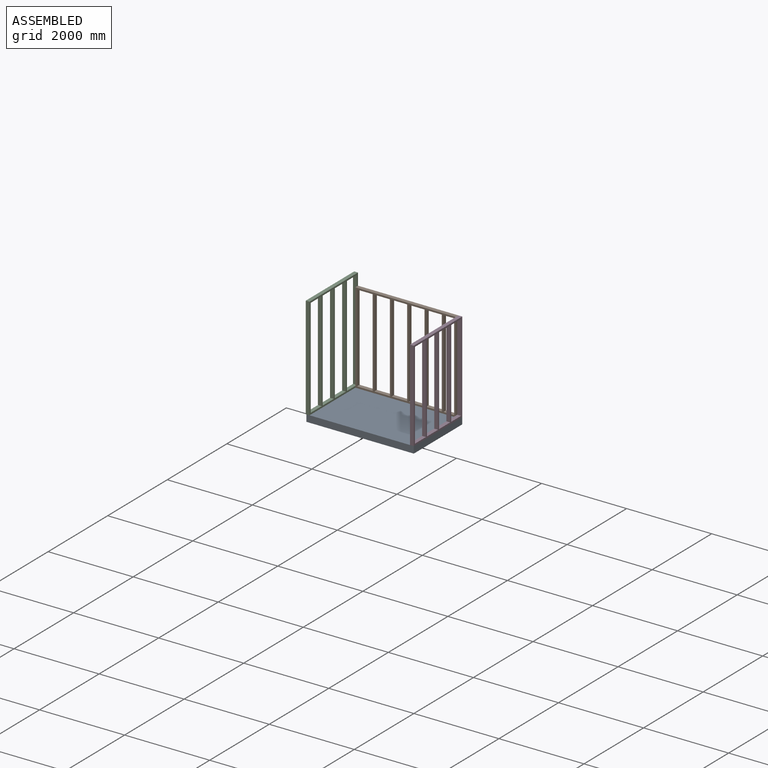
[diagram: assembled view]
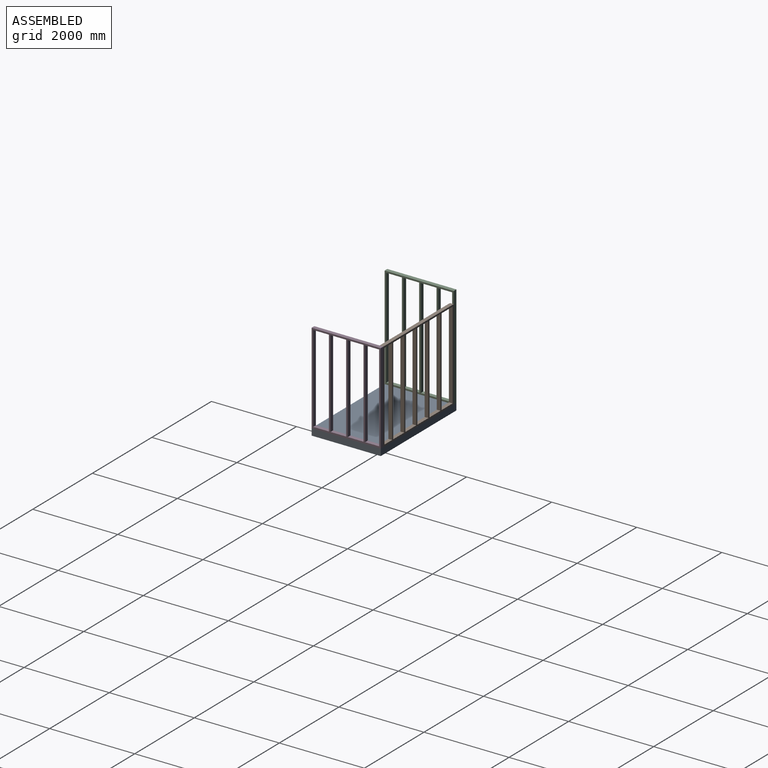
[diagram: assembled view, second angle]
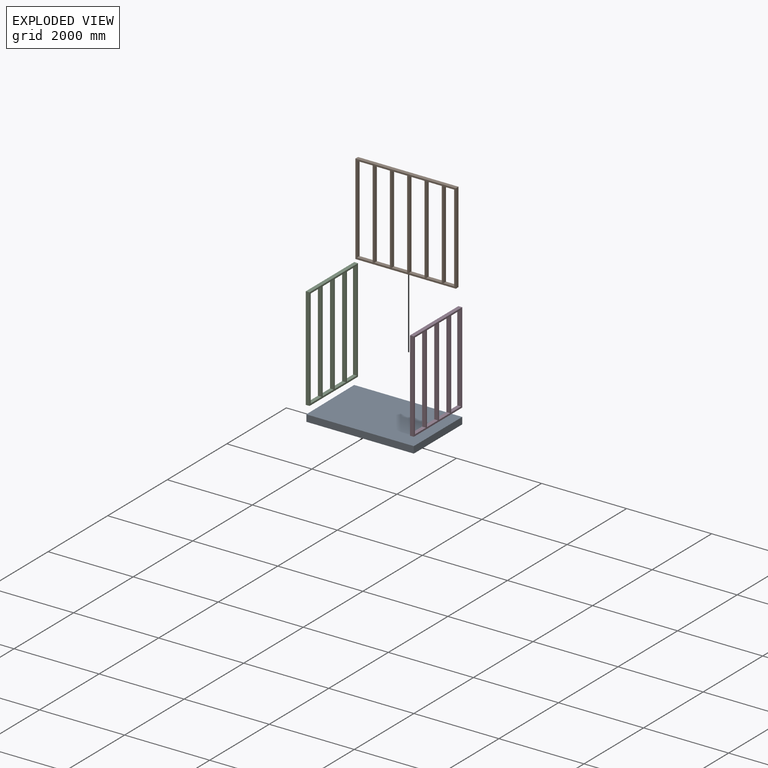
[diagram: exploded view]
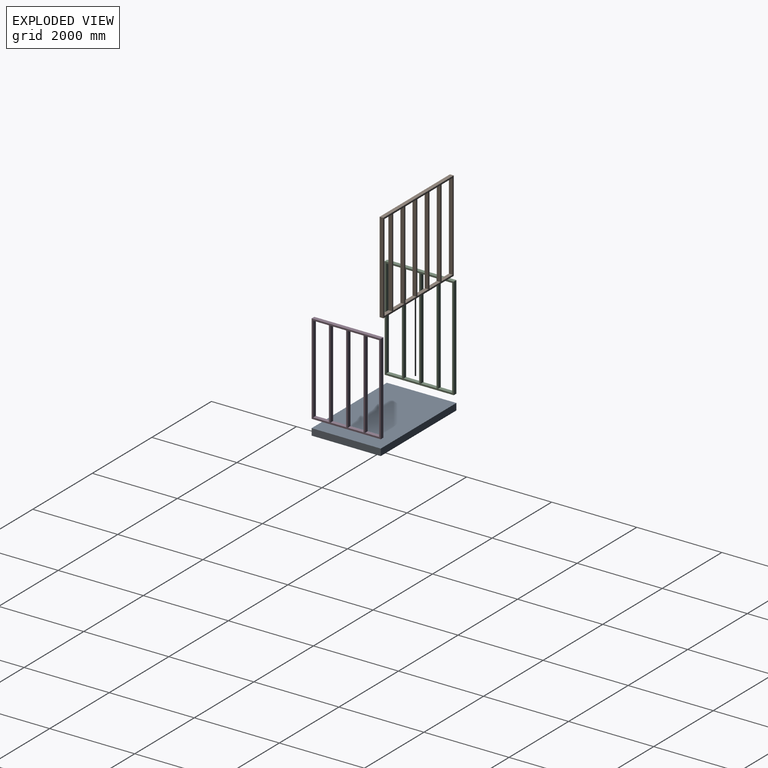
[diagram: exploded view, second angle]
ASSEMBLY  parts=4 mates=3
PART A: 6 faces, bbox 2540x1625.6x158.8 mm
  f0: plane 1625.6x158.75mm, normal (-1,-0.01,0), area 258071.9mm2, adj f1,f3,f4,f5
  f1: plane 2527.3x158.75mm, normal (0,-1,0), area 401208.9mm2, adj f0,f2,f4,f5
  f2: plane 1625.6x158.75mm, normal (1,0,0), area 258064mm2, adj f1,f3,f4,f5
  f3: plane 2540x158.75mm, normal (0,1,0), area 403225mm2, adj f0,f2,f4,f5
  f4: plane 2540x1625.6mm, normal (0,0,1), area 4118701.4mm2, adj f0,f1,f2,f3
  f5: plane 2540x1625.6mm, normal (0,0,-1), area 4118701.4mm2, adj f0,f1,f2,f3
PART B: 30 faces, bbox 2362.2x88.9x2133.6 mm
  f0: plane 2057.4x88.9mm, normal (-1,0,0), area 182902.9mm2, adj f1,f27,f28,f29
  f1: plane 368.3x88.9mm, normal (0,0,1), area 32741.9mm2, adj f0,f2,f28,f29
  f2: plane 2057.4x88.9mm, normal (1,0,0), area 182902.9mm2, adj f1,f27,f28,f29
  f3: plane 368.3x88.9mm, normal (0,0,1), area 32741.9mm2, adj f4,f21,f28,f29
  f4: plane 2057.4x88.9mm, normal (1,0,0), area 182902.9mm2, adj f3,f5,f28,f29
  f5: plane 368.3x88.9mm, normal (0,0,-1), area 32741.9mm2, adj f4,f21,f28,f29
  f6: plane 368.3x88.9mm, normal (0,0,1), area 32741.9mm2, adj f7,f22,f28,f29
  f7: plane 2057.4x88.9mm, normal (1,0,0), area 182902.9mm2, adj f6,f8,f28,f29
  f8: plane 368.3x88.9mm, normal (0,0,-1), area 32741.9mm2, adj f7,f22,f28,f29
  f9: plane 368.3x88.9mm, normal (0,0,1), area 32741.9mm2, adj f10,f23,f28,f29
  f10: plane 2057.4x88.9mm, normal (1,0,0), area 182902.9mm2, adj f9,f11,f28,f29
  f11: plane 368.3x88.9mm, normal (0,0,-1), area 32741.9mm2, adj f10,f23,f28,f29
  f12: plane 2057.4x88.9mm, normal (1,0,0), area 182902.9mm2, adj f13,f24,f28,f29
  f13: plane 368.3x88.9mm, normal (0,0,-1), area 32741.9mm2, adj f12,f14,f28,f29
  f14: plane 2057.4x88.9mm, normal (-1,0,0), area 182902.9mm2, adj f13,f24,f28,f29
  f15: plane 2362.2x88.9mm, normal (0,0,-1), area 209999.6mm2, adj f16,f25,f28,f29
  f16: plane 2133.6x88.9mm, normal (1,0,0), area 189677mm2, adj f15,f17,f28,f29
  f17: plane 2362.2x88.9mm, normal (0,0,1), area 209999.6mm2, adj f16,f25,f28,f29
  f18: plane 2057.4x88.9mm, normal (-1,0,0), area 182902.9mm2, adj f19,f26,f28,f29
  f19: plane 254x88.9mm, normal (0,0,1), area 22580.6mm2, adj f18,f20,f28,f29
  f20: plane 2057.4x88.9mm, normal (1,0,0), area 182902.9mm2, adj f19,f26,f28,f29
  f21: plane 2057.4x88.9mm, normal (-1,0,0), area 182902.9mm2, adj f3,f5,f28,f29
  f22: plane 2057.4x88.9mm, normal (-1,0,0), area 182902.9mm2, adj f6,f8,f28,f29
  f23: plane 2057.4x88.9mm, normal (-1,0,0), area 182902.9mm2, adj f9,f11,f28,f29
  f24: plane 368.3x88.9mm, normal (0,0,1), area 32741.9mm2, adj f12,f14,f28,f29
  f25: plane 2133.6x88.9mm, normal (-1,0,0), area 189677mm2, adj f15,f17,f28,f29
  f26: plane 254x88.9mm, normal (0,0,-1), area 22580.6mm2, adj f18,f20,f28,f29
  f27: plane 368.3x88.9mm, normal (0,0,-1), area 32741.9mm2, adj f0,f2,f28,f29
  f28: plane 2362.2x2133.6mm, normal (0,-1,0), area 728708.2mm2, adj f0,f1,f2,f3,f4,f5,f6,f7
  f29: plane 2362.2x2133.6mm, normal (0,1,0), area 728708.2mm2, adj f0,f1,f2,f3,f4,f5,f6,f7
PART C: 22 faces, bbox 88.9x1625.6x2413 mm
  f0: plane 2336.8x88.9mm, normal (0,-1,0), area 207741.5mm2, adj f1,f19,f20,f21
  f1: plane 368.3x88.9mm, normal (0,0,1), area 32741.9mm2, adj f0,f2,f20,f21
  f2: plane 2336.8x88.9mm, normal (0,1,0), area 207741.5mm2, adj f1,f19,f20,f21
  f3: plane 2413x88.9mm, normal (0,1,0), area 214515.7mm2, adj f4,f15,f20,f21
  f4: plane 1625.6x88.9mm, normal (0,0,1), area 144515.8mm2, adj f3,f5,f20,f21
  f5: plane 2413x88.9mm, normal (0,-1,0), area 214515.7mm2, adj f4,f15,f20,f21
  f6: plane 2336.8x88.9mm, normal (0,-1,0), area 207741.5mm2, adj f7,f16,f20,f21
  f7: plane 330.2x88.9mm, normal (0,0,1), area 29354.8mm2, adj f6,f8,f20,f21
  f8: plane 2336.8x88.9mm, normal (0,1,0), area 207741.5mm2, adj f7,f16,f20,f21
  f9: plane 368.3x88.9mm, normal (0,0,1), area 32741.9mm2, adj f10,f17,f20,f21
  f10: plane 2336.8x88.9mm, normal (0,1,0), area 207741.5mm2, adj f9,f11,f20,f21
  f11: plane 368.3x88.9mm, normal (0,0,-1), area 32741.9mm2, adj f10,f17,f20,f21
  f12: plane 368.3x88.9mm, normal (0,0,1), area 32741.9mm2, adj f13,f18,f20,f21
  f13: plane 2336.8x88.9mm, normal (0,1,0), area 207741.5mm2, adj f12,f14,f20,f21
  f14: plane 368.3x88.9mm, normal (0,0,-1), area 32741.9mm2, adj f13,f18,f20,f21
  f15: plane 1625.6x88.9mm, normal (0,0,-1), area 144515.8mm2, adj f3,f5,f20,f21
  f16: plane 330.2x88.9mm, normal (0,0,-1), area 29354.8mm2, adj f6,f8,f20,f21
  f17: plane 2336.8x88.9mm, normal (0,-1,0), area 207741.5mm2, adj f9,f11,f20,f21
  f18: plane 2336.8x88.9mm, normal (0,-1,0), area 207741.5mm2, adj f12,f14,f20,f21
  f19: plane 368.3x88.9mm, normal (0,0,-1), area 32741.9mm2, adj f0,f2,f20,f21
  f20: plane 2413x1625.6mm, normal (1,0,0), area 569031.1mm2, adj f0,f1,f2,f3,f4,f5,f6,f7
  f21: plane 2413x1625.6mm, normal (-1,0,0), area 569031.1mm2, adj f0,f1,f2,f3,f4,f5,f6,f7
PART D: 22 faces, bbox 88.9x1625.6x2133.6 mm
  f0: plane 2057.4x88.9mm, normal (0,-1,0), area 182902.9mm2, adj f1,f19,f20,f21
  f1: plane 368.3x88.9mm, normal (0,0,1), area 32741.9mm2, adj f0,f2,f20,f21
  f2: plane 2057.4x88.9mm, normal (0,1,0), area 182902.9mm2, adj f1,f19,f20,f21
  f3: plane 368.3x88.9mm, normal (0,0,1), area 32741.9mm2, adj f4,f15,f20,f21
  f4: plane 2057.4x88.9mm, normal (0,1,0), area 182902.9mm2, adj f3,f5,f20,f21
  f5: plane 368.3x88.9mm, normal (0,0,-1), area 32741.9mm2, adj f4,f15,f20,f21
  f6: plane 2057.4x88.9mm, normal (0,1,0), area 182902.9mm2, adj f7,f16,f20,f21
  f7: plane 368.3x88.9mm, normal (0,0,-1), area 32741.9mm2, adj f6,f8,f20,f21
  f8: plane 2057.4x88.9mm, normal (0,-1,0), area 182902.9mm2, adj f7,f16,f20,f21
  f9: plane 1625.6x88.9mm, normal (0,0,-1), area 144515.8mm2, adj f10,f17,f20,f21
  f10: plane 2133.6x88.9mm, normal (0,1,0), area 189677mm2, adj f9,f11,f20,f21
  f11: plane 1625.6x88.9mm, normal (0,0,1), area 144515.8mm2, adj f10,f17,f20,f21
  f12: plane 2057.4x88.9mm, normal (0,-1,0), area 182902.9mm2, adj f13,f18,f20,f21
  f13: plane 330.2x88.9mm, normal (0,0,1), area 29354.8mm2, adj f12,f14,f20,f21
  f14: plane 2057.4x88.9mm, normal (0,1,0), area 182902.9mm2, adj f13,f18,f20,f21
  f15: plane 2057.4x88.9mm, normal (0,-1,0), area 182902.9mm2, adj f3,f5,f20,f21
  f16: plane 368.3x88.9mm, normal (0,0,1), area 32741.9mm2, adj f6,f8,f20,f21
  f17: plane 2133.6x88.9mm, normal (0,-1,0), area 189677mm2, adj f9,f11,f20,f21
  f18: plane 330.2x88.9mm, normal (0,0,-1), area 29354.8mm2, adj f12,f14,f20,f21
  f19: plane 368.3x88.9mm, normal (0,0,-1), area 32741.9mm2, adj f0,f2,f20,f21
  f20: plane 2133.6x1625.6mm, normal (1,0,0), area 515805.4mm2, adj f0,f1,f2,f3,f4,f5,f6,f7
  f21: plane 2133.6x1625.6mm, normal (-1,0,0), area 515805.4mm2, adj f0,f1,f2,f3,f4,f5,f6,f7
PLACE A t=(-2226.47,-2430.47,-209.18)mm
PLACE B t=(-2150.27,-804.87,-50.43)mm
PLACE C t=(-2239.17,-2430.47,-50.43)mm
PLACE D t=(211.93,-1590.49,998.78)mm
MATE fastened C.f15 <-> B.f15  axis (0,0,1) through (-2150.27,-804.87,-50.43)mm
MATE fastened A.f4 <-> D.f9  axis (0,0,1) through (300.83,-804.87,-50.43)mm
MATE fastened A.f4 <-> C.f15  axis (0,0,1) through (-2239.17,-804.87,-50.43)mm
